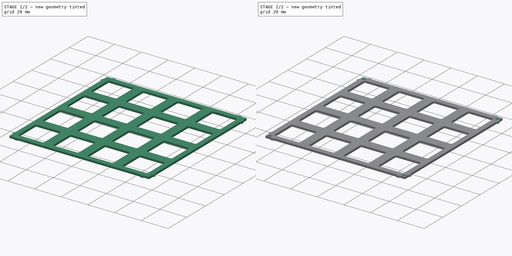
[diagram: build sequence overview — one tinted view per stage of 2, left to right]
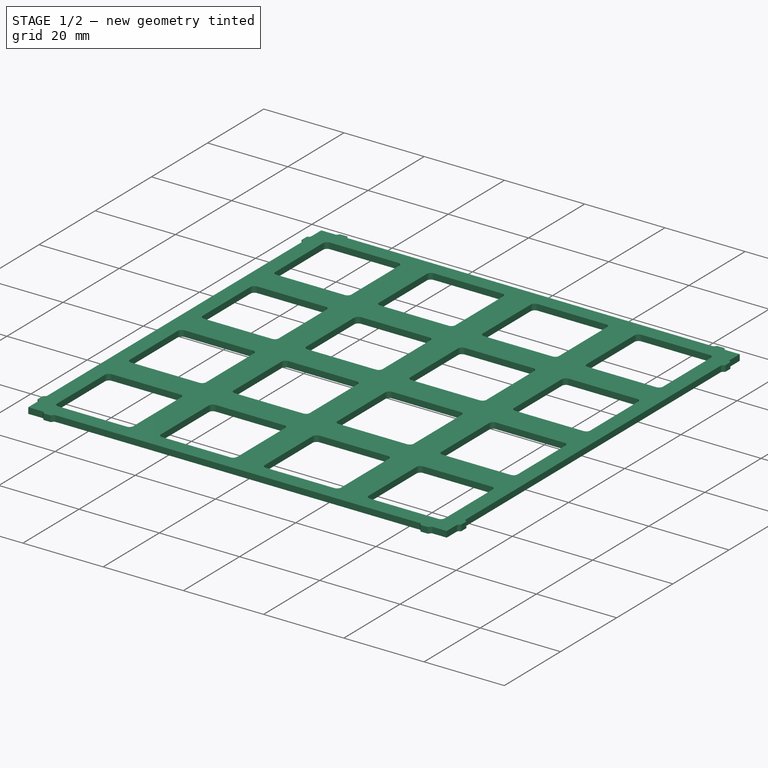
[diagram: stage 1 of 2 — iso view after this stage's code; geometry added in this stage tinted green]
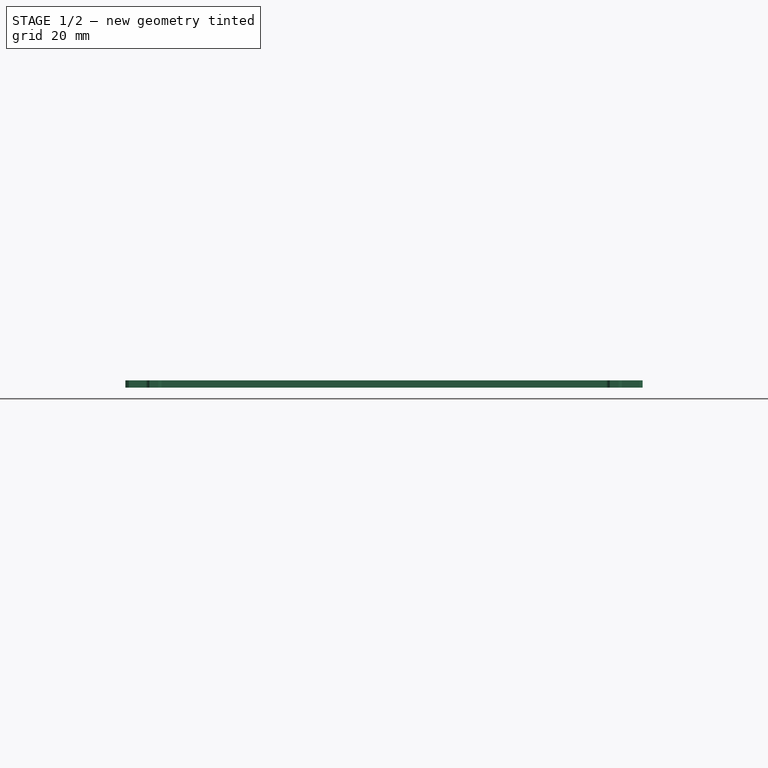
[diagram: stage 1 of 2 — front view after this stage's code; geometry added in this stage tinted green]
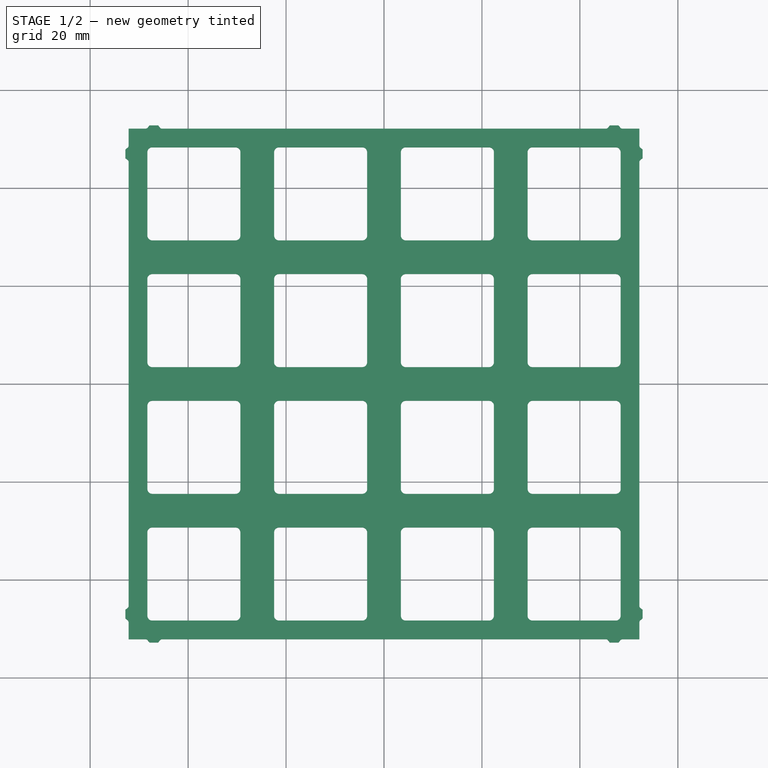
[diagram: stage 1 of 2 — top view after this stage's code; geometry added in this stage tinted green]
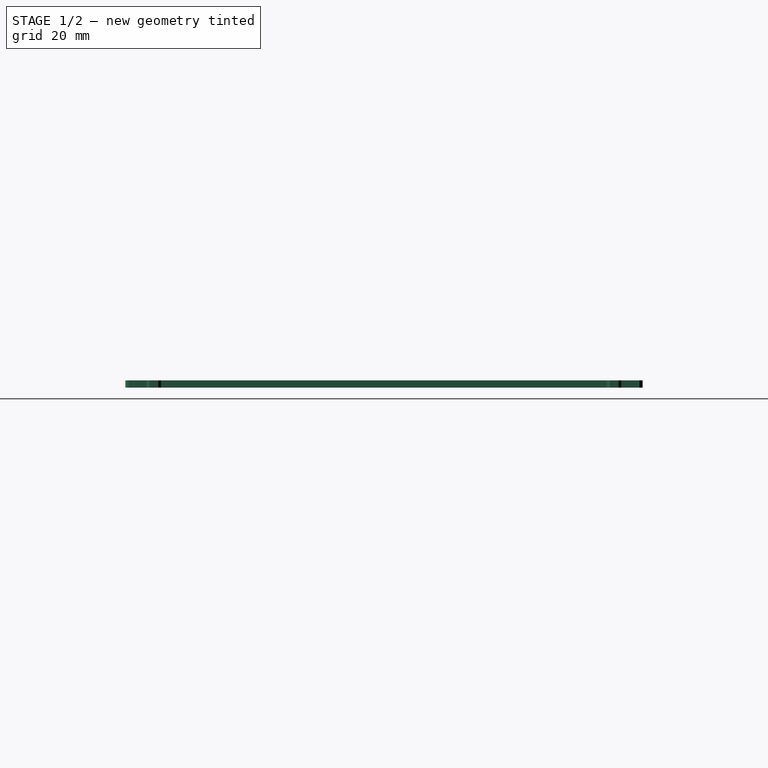
[diagram: stage 1 of 2 — right view after this stage's code; geometry added in this stage tinted green]
FCSTD DOCUMENT  (FreeCAD 1.0R39319 (Git))
Label: FRONTPANEL-BU16-1.5
License: All rights reserved
LicenseURL: https://en.wikipedia.org/wiki/All_rights_reserved
objects: Sketcher::SketchObject×3, Part::Feature×1, App::Part×1, PartDesign::SubShapeBinder×1, PartDesign::Pad×1, PartDesign::Pocket×1, PartDesign::Hole×1, PartDesign::Body×1
note: 18 computed .brp shape members not serialized (recipe doc carries the construction recipe); baked Part::Feature solids carry a one-line shape summary decoded from their .brp

FEATURE [Part::Feature] Part__Feature  label="kibot_hpbs7243_PCB"
  shape: bbox 105.6 x 105.6 x 0.91 mm, 206 faces (baked)
FEATURE [App::Part] FP_BU16_3D_1  label="FP-BU16-3D 1"
  Group = -> [Part__Feature]
  Origin = -> Origin001
FEATURE [PartDesign::SubShapeBinder] Binder
  BindCopyOnChange = 0
  BindMode = 0
  ClaimChildren = false
  Context = -> Body [Binder.]
  Fuse = false
  MakeFace = true
  OffsetFill = false
  OffsetIntersection = false
  OffsetJoinType = 0
  OffsetOpenResult = false
  PartialLoad = false
  Refine = true
  Relative = true
  Support = -> [FP_BU16_3D_1]
  _Version = 2
FEATURE [Sketcher::SketchObject] Sketch
  ArcFitTolerance = 1e-06
  AttachmentSupport = -> [XY_Plane]
  ExternalGeometry = -> [Binder]
  FullyConstrained = true
  MakeInternals = false
  MapMode = 5
  sketch-geometry (61):
    g0: LineSegment StartX=-52.15 StartY=-52.15 StartZ=0 EndX=-48.6441 EndY=-52.15 EndZ=0
    g1: LineSegment StartX=52.15 StartY=-52.15 StartZ=0 EndX=52.15 EndY=-48.6441 EndZ=0
    g2: LineSegment StartX=52.15 StartY=52.15 StartZ=0 EndX=48.6441 EndY=52.15 EndZ=0
    g3: LineSegment StartX=-52.15 StartY=52.15 StartZ=0 EndX=-52.15 EndY=48.6441 EndZ=0
    g4: GeomPoint [constr] X=0 Y=0 Z=0
    g5: LineSegment StartX=-48.2461 StartY=-52.3474 StartZ=0 EndX=-47.9019 EndY=-52.8 EndZ=0
    g6: LineSegment StartX=-46.0981 StartY=-52.8 StartZ=0 EndX=-45.7539 EndY=-52.3474 EndZ=0
    g7: LineSegment StartX=-47.9019 StartY=-52.8 StartZ=0 EndX=-46.0981 EndY=-52.8 EndZ=0
    g8: LineSegment StartX=-45.3559 StartY=-52.15 StartZ=0 EndX=45.3559 EndY=-52.15 EndZ=0
    g9: ArcOfCircle CenterX=-48.6441 CenterY=-52.65 CenterZ=0 NormalX=0 NormalY=0 NormalZ=1 AngleXU=0 Radius=0.500001 StartAngle=0.650143 EndAngle=1.5708
    g10: GeomPoint [constr] X=-48.3962 Y=-52.15 Z=0
    g11: ArcOfCircle CenterX=-45.3559 CenterY=-52.65 CenterZ=0 NormalX=0 NormalY=0 NormalZ=1 AngleXU=0 Radius=0.500001 StartAngle=1.5708 EndAngle=2.49145
    g12: LineSegment StartX=45.7539 StartY=-52.3474 StartZ=0 EndX=46.0981 EndY=-52.8 EndZ=0
    g13: LineSegment StartX=46.0981 StartY=-52.8 StartZ=0 EndX=47.9019 EndY=-52.8 EndZ=0
    g14: LineSegment StartX=47.9019 StartY=-52.8 StartZ=0 EndX=48.2461 EndY=-52.3474 EndZ=0
    g15: LineSegment StartX=48.6441 StartY=-52.15 StartZ=0 EndX=52.15 EndY=-52.15 EndZ=0
    g16: ArcOfCircle CenterX=45.3559 CenterY=-52.65 CenterZ=0 NormalX=0 NormalY=0 NormalZ=1 AngleXU=0 Radius=0.500001 StartAngle=0.650143 EndAngle=1.5708
    g17: GeomPoint [constr] X=45.6038 Y=-52.15 Z=0
    g18: ArcOfCircle CenterX=48.6441 CenterY=-52.65 CenterZ=0 NormalX=0 NormalY=0 NormalZ=1 AngleXU=0 Radius=0.500001 StartAngle=1.5708 EndAngle=2.49145
    g19: LineSegment StartX=52.3474 StartY=-48.2461 StartZ=0 EndX=52.8 EndY=-47.9019 EndZ=0
    g20: LineSegment StartX=52.8 StartY=-47.9019 StartZ=0 EndX=52.8 EndY=-46.0981 EndZ=0
    g21: LineSegment StartX=52.8 StartY=-46.0981 StartZ=0 EndX=52.3474 EndY=-45.7539 EndZ=0
    g22: LineSegment StartX=52.3474 StartY=45.7539 StartZ=0 EndX=52.8 EndY=46.0981 EndZ=0
    g23: LineSegment StartX=52.8 StartY=46.0981 StartZ=0 EndX=52.8 EndY=47.9019 EndZ=0
    g24: LineSegment StartX=52.8 StartY=47.9019 StartZ=0 EndX=52.3474 EndY=48.2461 EndZ=0
    g25: LineSegment StartX=48.2461 StartY=52.3474 StartZ=0 EndX=47.9019 EndY=52.8 EndZ=0
    g26: LineSegment StartX=47.9019 StartY=52.8 StartZ=0 EndX=46.0981 EndY=52.8 EndZ=0
    g27: LineSegment StartX=46.0981 StartY=52.8 StartZ=0 EndX=45.7539 EndY=52.3474 EndZ=0
    g28: LineSegment StartX=-45.7539 StartY=52.3474 StartZ=0 EndX=-46.0981 EndY=52.8 EndZ=0
    g29: LineSegment StartX=-46.0981 StartY=52.8 StartZ=0 EndX=-47.9019 EndY=52.8 EndZ=0
    g30: LineSegment StartX=-47.9019 StartY=52.8 StartZ=0 EndX=-48.2461 EndY=52.3474 EndZ=0
    g31: LineSegment StartX=-52.3474 StartY=48.2461 StartZ=0 EndX=-52.8 EndY=47.9019 EndZ=0
    g32: LineSegment StartX=-52.8 StartY=47.9019 StartZ=0 EndX=-52.8 EndY=46.0981 EndZ=0
    g33: LineSegment StartX=-52.8 StartY=46.0981 StartZ=0 EndX=-52.3474 EndY=45.7539 EndZ=0
    g34: LineSegment StartX=-52.3474 StartY=-48.2461 StartZ=0 EndX=-52.8 EndY=-47.9019 EndZ=0
    g35: LineSegment StartX=-52.8 StartY=-47.9019 StartZ=0 EndX=-52.8 EndY=-46.0981 EndZ=0
    g36: LineSegment StartX=-52.8 StartY=-46.0981 StartZ=0 EndX=-52.3474 EndY=-45.7539 EndZ=0
    g37: LineSegment StartX=-52.15 StartY=-48.6441 StartZ=0 EndX=-52.15 EndY=-52.15 EndZ=0
    g38: LineSegment StartX=-52.15 StartY=45.3559 StartZ=0 EndX=-52.15 EndY=-45.3559 EndZ=0
    g39: LineSegment StartX=-48.6441 StartY=52.15 StartZ=0 EndX=-52.15 EndY=52.15 EndZ=0
    g40: LineSegment StartX=45.3559 StartY=52.15 StartZ=0 EndX=-45.3559 EndY=52.15 EndZ=0
    g41: LineSegment StartX=52.15 StartY=48.6441 StartZ=0 EndX=52.15 EndY=52.15 EndZ=0
    g42: LineSegment StartX=52.15 StartY=-45.3559 StartZ=0 EndX=52.15 EndY=45.3559 EndZ=0
    g43: ArcOfCircle CenterX=52.65 CenterY=-48.6441 CenterZ=0 NormalX=0 NormalY=0 NormalZ=1 AngleXU=0 Radius=0.500001 StartAngle=2.22094 EndAngle=3.14159
    g44: GeomPoint [constr] X=52.15 Y=-48.3962 Z=0
    g45: ArcOfCircle CenterX=52.65 CenterY=-45.3559 CenterZ=0 NormalX=0 NormalY=0 NormalZ=1 AngleXU=0 Radius=0.500001 StartAngle=3.14159 EndAngle=4.06225
    g46: ArcOfCircle CenterX=52.65 CenterY=45.3559 CenterZ=0 NormalX=0 NormalY=0 NormalZ=1 AngleXU=0 Radius=0.500001 StartAngle=2.22094 EndAngle=3.14159
    g47: GeomPoint [constr] X=52.15 Y=45.6038 Z=0
    g48: ArcOfCircle CenterX=52.65 CenterY=48.6441 CenterZ=0 NormalX=0 NormalY=0 NormalZ=1 AngleXU=0 Radius=0.500001 StartAngle=3.14159 EndAngle=4.06225
    g49: ArcOfCircle CenterX=48.6441 CenterY=52.65 CenterZ=0 NormalX=0 NormalY=0 NormalZ=1 AngleXU=0 Radius=0.500001 StartAngle=3.79174 EndAngle=4.71239
    g50: GeomPoint [constr] X=48.3962 Y=52.15 Z=0
    g51: ArcOfCircle CenterX=45.3559 CenterY=52.65 CenterZ=0 NormalX=0 NormalY=0 NormalZ=1 AngleXU=0 Radius=0.500001 StartAngle=4.71239 EndAngle=5.63304
    g52: ArcOfCircle CenterX=-45.3559 CenterY=52.65 CenterZ=0 NormalX=0 NormalY=0 NormalZ=1 AngleXU=0 Radius=0.500001 StartAngle=3.79174 EndAngle=4.71239
    g53: GeomPoint [constr] X=-45.6038 Y=52.15 Z=0
    g54: ArcOfCircle CenterX=-48.6441 CenterY=52.65 CenterZ=0 NormalX=0 NormalY=0 NormalZ=1 AngleXU=0 Radius=0.500001 StartAngle=4.71239 EndAngle=5.63304
    g55: ArcOfCircle CenterX=-52.65 CenterY=48.6441 CenterZ=0 NormalX=0 NormalY=0 NormalZ=1 AngleXU=0 Radius=0.500001 StartAngle=5.36253 EndAngle=6.28319
    g56: GeomPoint [constr] X=-52.15 Y=48.3962 Z=0
    g57: ArcOfCircle CenterX=-52.65 CenterY=45.3559 CenterZ=0 NormalX=0 NormalY=0 NormalZ=1 AngleXU=0 Radius=0.500001 StartAngle=-5.3e-15 EndAngle=0.920653
    g58: ArcOfCircle CenterX=-52.65 CenterY=-45.3559 CenterZ=0 NormalX=0 NormalY=0 NormalZ=1 AngleXU=0 Radius=0.500001 StartAngle=5.36253 EndAngle=6.28319
    g59: GeomPoint [constr] X=-52.15 Y=-45.6038 Z=0
    g60: ArcOfCircle CenterX=-52.65 CenterY=-48.6441 CenterZ=0 NormalX=0 NormalY=0 NormalZ=1 AngleXU=0 Radius=0.500001 StartAngle=-4.4e-15 EndAngle=0.920653
  constraints (157):
    c: Coincident(g15,g1)
    c: Coincident(g41,g2)
    c: Coincident(g39,g3)
    c: Coincident(g37,g0)
    c: Horizontal(g0)
    c: Horizontal(g2)
    c: Vertical(g1)
    c: Vertical(g3)
    c: Symmetric(g2,g0,g4)
    c: Coincident(g4,g-1)
    c: Distance(g-3,g-4) = 104.35
    c: Distance(g1,g3) = 104.3
    c: PointOnObject(g5,g-5)
    c: Parallel(g-7,g5)
    c: PointOnObject(g6,g-5)
    c: Parallel(g-8,g6)
    c: Coincident(g7,g5)
    c: Coincident(g7,g6)
    c: Distance(g-7,g5) = 0.1
    c: Distance(g6,g-8) = 0.1
    c: PointOnObject(g10,g5)
    c: PointOnObject(g10,g0)
    c: Tangent(g5,g9) = 1.5708
    c: Tangent(g0,g9) = 1.5708
    c: Tangent(g6,g11) = 1.5708
    c: Tangent(g8,g11) = 1.5708
    c: Equal(g-9,g9)
    c: Equal(g-10,g11)
    c: Horizontal(g8)
    c: Equal(g5,g6)
    c: Coincident(g13,g12)
    c: Horizontal(g13)
    c: Coincident(g14,g13)
    c: PointOnObject(g17,g12)
    c: PointOnObject(g17,g8)
    c: Tangent(g12,g16) = 1.5708
    c: Tangent(g8,g16) = 1.5708
    c: Tangent(g14,g18) = 1.5708
    c: Tangent(g15,g18) = 1.5708
    c: Equal(g16,g18)
    c: Equal(g16,g9)
    c: Equal(g14,g12)
    c: Equal(g5,g12)
    c: Horizontal(g15)
    c: Equal(g13,g7)
    c: Equal(g15,g0)
    c: Coincident(g20,g19)
    c: Vertical(g20)
    c: Coincident(g21,g20)
    c: Coincident(g23,g22)
    c: Coincident(g24,g23)
    c: Coincident(g26,g25)
    c: Horizontal(g26)
    c: Coincident(g27,g26)
    c: Coincident(g29,g28)
    c: Horizontal(g29)
    c: Coincident(g32,g31)
    c: Coincident(g33,g32)
    c: Coincident(g35,g34)
    c: Coincident(g36,g35)
    c: Vertical(g35)
    c: Vertical(g23)
    c: Coincident(g30,g29)
    c: Vertical(g32)
    c: PointOnObject(g44,g19)
    c: PointOnObject(g44,g1)
    c: Tangent(g19,g43) = 1.5708
    c: Tangent(g1,g43) = 1.5708
    c: Tangent(g21,g45) = 1.5708
    c: Tangent(g42,g45) = 1.5708
    c: PointOnObject(g47,g22)
    c: PointOnObject(g47,g42)
    c: Tangent(g22,g46) = 1.5708
    c: Tangent(g42,g46) = 1.5708
    c: Tangent(g24,g48) = 1.5708
    c: Tangent(g41,g48) = 1.5708
    c: PointOnObject(g50,g25)
    c: PointOnObject(g50,g2)
    c: Tangent(g25,g49) = 1.5708
    c: Tangent(g2,g49) = 1.5708
    c: Tangent(g27,g51) = 1.5708
    c: Tangent(g40,g51) = 1.5708
    c: PointOnObject(g53,g28)
    c: PointOnObject(g53,g40)
    c: Tangent(g28,g52) = 1.5708
    c: Tangent(g40,g52) = 1.5708
    c: Tangent(g30,g54) = 1.5708
    c: Tangent(g39,g54) = 1.5708
    c: PointOnObject(g56,g31)
    c: PointOnObject(g56,g3)
    c: Tangent(g31,g55) = 1.5708
    c: Tangent(g3,g55) = 1.5708
    c: Tangent(g38,g57) = 1.5708
    c: Tangent(g33,g57) = 1.5708
    c: PointOnObject(g59,g36)
    c: PointOnObject(g59,g38)
    c: Tangent(g36,g58) = -1.5708
    c: Tangent(g38,g58) = 1.5708
    c: Tangent(g37,g60) = 1.5708
    c: Tangent(g34,g60) = -1.5708
    c: Equal(g58,g60)
    c: Equal(g55,g57)
    c: Equal(g54,g52)
    c: Equal(g49,g51)
    c: Equal(g48,g46)
    c: Equal(g43,g45)
    c: Vertical(g42)
    c: Horizontal(g40)
    c: Vertical(g38)
    c: Vertical(g37)
    c: Horizontal(g39)
    c: Vertical(g41)
    c: Equal(g1,g15)
    c: Equal(g0,g37)
    c: Equal(g39,g3)
    c: Equal(g2,g41)
    c: Vertical(g38,g37)
    c: Vertical(g1,g42)
    c: Vertical(g3,g38)
    c: Horizontal(g39,g40)
    c: Equal(g30,g28)
    c: Equal(g36,g34)
    c: Equal(g21,g19)
    c: Equal(g22,g24)
    c: Equal(g25,g27)
    c: Equal(g7,g35)
    c: Equal(g32,g29)
    c: Equal(g32,g7)
    c: Equal(g29,g26)
    c: Equal(g26,g23)
    c: Equal(g23,g20)
    c: Equal(g5,g34)
    c: Equal(g33,g34)
    c: Equal(g33,g30)
    c: Equal(g30,g27)
    c: Equal(g25,g24)
    c: Equal(g24,g21)
    c: Equal(g9,g60)
    c: Equal(g60,g57)
    c: Equal(g57,g54)
    c: Equal(g54,g51)
    c: Equal(g51,g48)
    c: Equal(g48,g45)
    c: Parallel(g6,g14)
    c: Parallel(g12,g5)
    c: Parallel(g34,g33)
    c: Parallel(g36,g31)
    c: Parallel(g24,g21)
    c: Parallel(g19,g22)
    c: Equal(g8,g38)
    c: Distance(g40,g8) = 104.3
    c: PointOnObject(g20,g-13)
    c: Equal(g41,g1)
    c: PointOnObject(g35,g-14)
    c: Equal(g37,g3)
    c: Horizontal(g28,g26)
    c: PointOnObject(g29,g-15)
FEATURE [PartDesign::Pad] Pad
  Direction = (0,0,1)
  Length = 1.5
  Length2 = 10
  Profile = -> Sketch
  ReferenceAxis = -> Sketch [N_Axis]
  Refine = true
  Reversed = true
  Suppressed = false
  Type = 0
FEATURE [Sketcher::SketchObject] Sketch001
  ArcFitTolerance = 1e-06
  AttachmentSupport = -> [XY_Plane]
  FullyConstrained = true
  MakeInternals = false
  MapMode = 5
  sketch-geometry (234):
    g0: LineSegment StartX=-47.32 StartY=29.32 StartZ=0 EndX=-30.32 EndY=29.32 EndZ=0
    g1: LineSegment StartX=-29.32 StartY=30.32 StartZ=0 EndX=-29.32 EndY=47.32 EndZ=0
    g2: LineSegment StartX=-30.32 StartY=48.32 StartZ=0 EndX=-47.32 EndY=48.32 EndZ=0
    g3: LineSegment StartX=-48.32 StartY=47.32 StartZ=0 EndX=-48.32 EndY=30.32 EndZ=0
    g4: GeomPoint [constr] X=-38.82 Y=38.82 Z=0
    g5: ArcOfCircle CenterX=-47.32 CenterY=47.32 CenterZ=0 NormalX=0 NormalY=0 NormalZ=1 AngleXU=0 Radius=1 StartAngle=1.5708 EndAngle=3.14159
    g6: GeomPoint [constr] X=-48.32 Y=48.32 Z=0
    g7: ArcOfCircle CenterX=-30.32 CenterY=47.32 CenterZ=0 NormalX=0 NormalY=0 NormalZ=1 AngleXU=0 Radius=1 StartAngle=-2.7e-15 EndAngle=1.5708
    g8: GeomPoint [constr] X=-29.32 Y=48.32 Z=0
    g9: ArcOfCircle CenterX=-30.32 CenterY=30.32 CenterZ=0 NormalX=0 NormalY=0 NormalZ=1 AngleXU=0 Radius=1 StartAngle=4.71239 EndAngle=6.28319
    g10: GeomPoint [constr] X=-29.32 Y=29.32 Z=0
    g11: ArcOfCircle CenterX=-47.32 CenterY=30.32 CenterZ=0 NormalX=0 NormalY=0 NormalZ=1 AngleXU=0 Radius=1 StartAngle=3.14159 EndAngle=4.71239
    g12: GeomPoint [constr] X=-48.32 Y=29.32 Z=0
    g13: LineSegment StartX=-21.44 StartY=29.32 StartZ=0 EndX=-4.44 EndY=29.32 EndZ=0
    g14: LineSegment StartX=-3.44 StartY=30.32 StartZ=0 EndX=-3.44 EndY=47.32 EndZ=0
    g15: LineSegment StartX=-4.44 StartY=48.32 StartZ=0 EndX=-21.44 EndY=48.32 EndZ=0
    g16: LineSegment StartX=-22.44 StartY=47.32 StartZ=0 EndX=-22.44 EndY=30.32 EndZ=0
    g17: GeomPoint [constr] X=-12.94 Y=38.82 Z=0
    g18: LineSegment StartX=4.44 StartY=29.32 StartZ=0 EndX=21.44 EndY=29.32 EndZ=0
    g19: LineSegment StartX=22.44 StartY=30.32 StartZ=0 EndX=22.44 EndY=47.32 EndZ=0
    g20: LineSegment StartX=21.44 StartY=48.32 StartZ=0 EndX=4.44 EndY=48.32 EndZ=0
    g21: LineSegment StartX=3.44 StartY=47.32 StartZ=0 EndX=3.44 EndY=30.32 EndZ=0
    g22: GeomPoint [constr] X=12.94 Y=38.82 Z=0
    g23: LineSegment StartX=30.32 StartY=29.32 StartZ=0 EndX=47.32 EndY=29.32 EndZ=0
    g24: LineSegment StartX=48.32 StartY=30.32 StartZ=0 EndX=48.32 EndY=47.32 EndZ=0
    g25: LineSegment StartX=47.32 StartY=48.32 StartZ=0 EndX=30.32 EndY=48.32 EndZ=0
    g26: LineSegment StartX=29.32 StartY=47.32 StartZ=0 EndX=29.32 EndY=30.32 EndZ=0
    g27: GeomPoint [constr] X=38.82 Y=38.82 Z=0
    g28: LineSegment StartX=-47.32 StartY=3.44 StartZ=0 EndX=-30.32 EndY=3.44 EndZ=0
    g29: LineSegment StartX=-29.32 StartY=4.44 StartZ=0 EndX=-29.32 EndY=21.44 EndZ=0
    g30: LineSegment StartX=-30.32 StartY=22.44 StartZ=0 EndX=-47.32 EndY=22.44 EndZ=0
    g31: LineSegment StartX=-48.32 StartY=21.44 StartZ=0 EndX=-48.32 EndY=4.44 EndZ=0
    g32: GeomPoint [constr] X=-38.82 Y=12.94 Z=0
    g33: LineSegment StartX=-21.44 StartY=3.44 StartZ=0 EndX=-4.44 EndY=3.44 EndZ=0
    g34: LineSegment StartX=-3.44 StartY=4.44 StartZ=0 EndX=-3.44 EndY=21.44 EndZ=0
    g35: LineSegment StartX=-4.44 StartY=22.44 StartZ=0 EndX=-21.44 EndY=22.44 EndZ=0
    g36: LineSegment StartX=-22.44 StartY=21.44 StartZ=0 EndX=-22.44 EndY=4.44 EndZ=0
    g37: GeomPoint [constr] X=-12.94 Y=12.94 Z=0
    g38: LineSegment StartX=4.44 StartY=3.44 StartZ=0 EndX=21.44 EndY=3.44 EndZ=0
    g39: LineSegment StartX=22.44 StartY=4.44 StartZ=0 EndX=22.44 EndY=21.44 EndZ=0
    g40: LineSegment StartX=21.44 StartY=22.44 StartZ=0 EndX=4.44 EndY=22.44 EndZ=0
    g41: LineSegment StartX=3.44 StartY=21.44 StartZ=0 EndX=3.44 EndY=4.44 EndZ=0
    g42: GeomPoint [constr] X=12.94 Y=12.94 Z=0
    g43: LineSegment StartX=30.32 StartY=3.44 StartZ=0 EndX=47.32 EndY=3.44 EndZ=0
    g44: LineSegment StartX=48.32 StartY=4.44 StartZ=0 EndX=48.32 EndY=21.44 EndZ=0
    g45: LineSegment StartX=47.32 StartY=22.44 StartZ=0 EndX=30.32 EndY=22.44 EndZ=0
    g46: LineSegment StartX=29.32 StartY=21.44 StartZ=0 EndX=29.32 EndY=4.44 EndZ=0
    g47: GeomPoint [constr] X=38.82 Y=12.94 Z=0
    g48: ArcOfCircle CenterX=-21.44 CenterY=47.32 CenterZ=0 NormalX=0 NormalY=0 NormalZ=1 AngleXU=0 Radius=1 StartAngle=1.5708 EndAngle=3.14159
    g49: GeomPoint [constr] X=-22.44 Y=48.32 Z=0
    g50: ArcOfCircle CenterX=-4.44 CenterY=47.32 CenterZ=0 NormalX=0 NormalY=0 NormalZ=1 AngleXU=0 Radius=1 StartAngle=-1.8e-15 EndAngle=1.5708
    g51: GeomPoint [constr] X=-3.44 Y=48.32 Z=0
    g52: ArcOfCircle CenterX=-4.44 CenterY=30.32 CenterZ=0 NormalX=0 NormalY=0 NormalZ=1 AngleXU=0 Radius=1 StartAngle=4.71239 EndAngle=6.28319
    g53: GeomPoint [constr] X=-3.44 Y=29.32 Z=0
    g54: ArcOfCircle CenterX=-21.44 CenterY=30.32 CenterZ=0 NormalX=0 NormalY=0 NormalZ=1 AngleXU=0 Radius=1 StartAngle=3.14159 EndAngle=4.71239
    g55: GeomPoint [constr] X=-22.44 Y=29.32 Z=0
    g56: ArcOfCircle CenterX=4.44 CenterY=47.32 CenterZ=0 NormalX=0 NormalY=0 NormalZ=1 AngleXU=0 Radius=1 StartAngle=1.5708 EndAngle=3.14159
    g57: GeomPoint [constr] X=3.44 Y=48.32 Z=0
    g58: ArcOfCircle CenterX=21.44 CenterY=47.32 CenterZ=0 NormalX=0 NormalY=0 NormalZ=1 AngleXU=0 Radius=1 StartAngle=1.4e-15 EndAngle=1.5708
    g59: GeomPoint [constr] X=22.44 Y=48.32 Z=0
    g60: ArcOfCircle CenterX=30.32 CenterY=47.32 CenterZ=0 NormalX=0 NormalY=0 NormalZ=1 AngleXU=0 Radius=1 StartAngle=1.5708 EndAngle=3.14159
    g61: GeomPoint [constr] X=29.32 Y=48.32 Z=0
    g62: ArcOfCircle CenterX=47.32 CenterY=47.32 CenterZ=0 NormalX=0 NormalY=0 NormalZ=1 AngleXU=0 Radius=1 StartAngle=-1.8e-15 EndAngle=1.5708
    g63: GeomPoint [constr] X=48.32 Y=48.32 Z=0
    g64: ArcOfCircle CenterX=47.32 CenterY=30.32 CenterZ=0 NormalX=0 NormalY=0 NormalZ=1 AngleXU=0 Radius=1 StartAngle=4.71239 EndAngle=6.28319
    g65: GeomPoint [constr] X=48.32 Y=29.32 Z=0
    g66: ArcOfCircle CenterX=30.32 CenterY=30.32 CenterZ=0 NormalX=0 NormalY=0 NormalZ=1 AngleXU=0 Radius=1 StartAngle=3.14159 EndAngle=4.71239
    g67: GeomPoint [constr] X=29.32 Y=29.32 Z=0
    g68: ArcOfCircle CenterX=21.44 CenterY=30.32 CenterZ=0 NormalX=0 NormalY=0 NormalZ=1 AngleXU=0 Radius=1 StartAngle=4.71239 EndAngle=6.28319
    g69: GeomPoint [constr] X=22.44 Y=29.32 Z=0
    g70: ArcOfCircle CenterX=4.44 CenterY=30.32 CenterZ=0 NormalX=0 NormalY=0 NormalZ=1 AngleXU=0 Radius=1 StartAngle=3.14159 EndAngle=4.71239
    g71: GeomPoint [constr] X=3.44 Y=29.32 Z=0
    g72: ArcOfCircle CenterX=30.32 CenterY=21.44 CenterZ=0 NormalX=0 NormalY=0 NormalZ=1 AngleXU=0 Radius=1 StartAngle=1.5708 EndAngle=3.14159
    g73: GeomPoint [constr] X=29.32 Y=22.44 Z=0
    g74: ArcOfCircle CenterX=47.32 CenterY=21.44 CenterZ=0 NormalX=0 NormalY=0 NormalZ=1 AngleXU=0 Radius=1 StartAngle=4e-16 EndAngle=1.5708
    g75: GeomPoint [constr] X=48.32 Y=22.44 Z=0
    g76: ArcOfCircle CenterX=47.32 CenterY=4.44 CenterZ=0 NormalX=0 NormalY=0 NormalZ=1 AngleXU=0 Radius=1 StartAngle=4.71239 EndAngle=6.28319
    g77: GeomPoint [constr] X=48.32 Y=3.44 Z=0
    g78: ArcOfCircle CenterX=30.32 CenterY=4.44 CenterZ=0 NormalX=0 NormalY=0 NormalZ=1 AngleXU=0 Radius=1 StartAngle=3.14159 EndAngle=4.71239
    g79: GeomPoint [constr] X=29.32 Y=3.44 Z=0
    g80: ArcOfCircle CenterX=21.44 CenterY=4.44 CenterZ=0 NormalX=0 NormalY=0 NormalZ=1 AngleXU=0 Radius=1 StartAngle=4.71239 EndAngle=6.28319
    g81: GeomPoint [constr] X=22.44 Y=3.44 Z=0
    g82: ArcOfCircle CenterX=21.44 CenterY=21.44 CenterZ=0 NormalX=0 NormalY=0 NormalZ=1 AngleXU=0 Radius=1 StartAngle=1.7e-15 EndAngle=1.5708
    g83: GeomPoint [constr] X=22.44 Y=22.44 Z=0
    g84: ArcOfCircle CenterX=4.44 CenterY=21.44 CenterZ=0 NormalX=0 NormalY=0 NormalZ=1 AngleXU=0 Radius=1 StartAngle=1.5708 EndAngle=3.14159
    g85: GeomPoint [constr] X=3.44 Y=22.44 Z=0
    g86: ArcOfCircle CenterX=4.44 CenterY=4.44 CenterZ=0 NormalX=0 NormalY=0 NormalZ=1 AngleXU=0 Radius=1 StartAngle=3.14159 EndAngle=4.71239
    g87: GeomPoint [constr] X=3.44 Y=3.44 Z=0
    g88: ArcOfCircle CenterX=-21.44 CenterY=21.44 CenterZ=0 NormalX=0 NormalY=0 NormalZ=1 AngleXU=0 Radius=1 StartAngle=1.5708 EndAngle=3.14159
    g89: GeomPoint [constr] X=-22.44 Y=22.44 Z=0
    g90: ArcOfCircle CenterX=-4.44 CenterY=21.44 CenterZ=0 NormalX=0 NormalY=0 NormalZ=1 AngleXU=0 Radius=1 StartAngle=-9e-16 EndAngle=1.5708
    g91: GeomPoint [constr] X=-3.44 Y=22.44 Z=0
    g92: ArcOfCircle CenterX=-4.44 CenterY=4.44 CenterZ=0 NormalX=0 NormalY=0 NormalZ=1 AngleXU=0 Radius=1 StartAngle=4.71239 EndAngle=6.28319
    g93: GeomPoint [constr] X=-3.44 Y=3.44 Z=0
    g94: ArcOfCircle CenterX=-21.44 CenterY=4.44 CenterZ=0 NormalX=0 NormalY=0 NormalZ=1 AngleXU=0 Radius=1 StartAngle=3.14159 EndAngle=4.71239
    g95: GeomPoint [constr] X=-22.44 Y=3.44 Z=0
    g96: ArcOfCircle CenterX=-30.32 CenterY=21.44 CenterZ=0 NormalX=0 NormalY=0 NormalZ=1 AngleXU=0 Radius=1 StartAngle=1e-16 EndAngle=1.5708
    g97: GeomPoint [constr] X=-29.32 Y=22.44 Z=0
    g98: ArcOfCircle CenterX=-30.32 CenterY=4.44 CenterZ=0 NormalX=0 NormalY=0 NormalZ=1 AngleXU=0 Radius=1 StartAngle=4.71239 EndAngle=6.28319
    g99: GeomPoint [constr] X=-29.32 Y=3.44 Z=0
    g100: ArcOfCircle CenterX=-47.32 CenterY=4.44 CenterZ=0 NormalX=0 NormalY=0 NormalZ=1 AngleXU=0 Radius=1 StartAngle=3.14159 EndAngle=4.71239
    g101: GeomPoint [constr] X=-48.32 Y=3.44 Z=0
    g102: ArcOfCircle CenterX=-47.32 CenterY=21.44 CenterZ=0 NormalX=0 NormalY=0 NormalZ=1 AngleXU=0 Radius=1 StartAngle=1.5708 EndAngle=3.14159
    g103: GeomPoint [constr] X=-48.32 Y=22.44 Z=0
    g104: LineSegment [constr] StartX=-38.82 StartY=38.82 StartZ=0 EndX=-12.94 EndY=38.82 EndZ=0
    g105: LineSegment [constr] StartX=-12.94 StartY=38.82 StartZ=0 EndX=12.94 EndY=38.82 EndZ=0
    g106: LineSegment [constr] StartX=12.94 StartY=38.82 StartZ=0 EndX=38.82 EndY=38.82 EndZ=0
    g107: LineSegment [constr] StartX=38.82 StartY=38.82 StartZ=0 EndX=38.82 EndY=12.94 EndZ=0
    g108: LineSegment [constr] StartX=38.82 StartY=12.94 StartZ=0 EndX=12.94 EndY=12.94 EndZ=0
    g109: LineSegment [constr] StartX=12.94 StartY=12.94 StartZ=0 EndX=-12.94 EndY=12.94 EndZ=0
    g110: LineSegment [constr] StartX=-12.94 StartY=12.94 StartZ=0 EndX=-38.82 EndY=12.94 EndZ=0
    g111: LineSegment [constr] StartX=-38.82 StartY=12.94 StartZ=0 EndX=-38.82 EndY=38.82 EndZ=0
    g112: LineSegment [constr] StartX=-12.94 StartY=38.82 StartZ=0 EndX=-12.94 EndY=12.94 EndZ=0
    g113: LineSegment [constr] StartX=12.94 StartY=12.94 StartZ=0 EndX=12.94 EndY=38.82 EndZ=0
    g114: LineSegment StartX=-48.32 StartY=-4.44 StartZ=0 EndX=-48.32 EndY=-21.44 EndZ=0
    g115: LineSegment StartX=-47.32 StartY=-22.44 StartZ=0 EndX=-30.32 EndY=-22.44 EndZ=0
    g116: LineSegment StartX=-29.32 StartY=-21.44 StartZ=0 EndX=-29.32 EndY=-4.44 EndZ=0
    g117: LineSegment StartX=-30.32 StartY=-3.44 StartZ=0 EndX=-47.32 EndY=-3.44 EndZ=0
    g118: GeomPoint [constr] X=-38.82 Y=-12.94 Z=0
    g119: LineSegment StartX=-22.44 StartY=-4.44 StartZ=0 EndX=-22.44 EndY=-21.44 EndZ=0
    g120: LineSegment StartX=-21.44 StartY=-22.44 StartZ=0 EndX=-4.44 EndY=-22.44 EndZ=0
    g121: LineSegment StartX=-3.44 StartY=-21.44 StartZ=0 EndX=-3.44 EndY=-4.44 EndZ=0
    g122: LineSegment StartX=-4.44 StartY=-3.44 StartZ=0 EndX=-21.44 EndY=-3.44 EndZ=0
    g123: GeomPoint [constr] X=-12.94 Y=-12.94 Z=0
    g124: LineSegment StartX=3.44 StartY=-4.44 StartZ=0 EndX=3.44 EndY=-21.44 EndZ=0
    g125: LineSegment StartX=4.44 StartY=-22.44 StartZ=0 EndX=21.44 EndY=-22.44 EndZ=0
    g126: LineSegment StartX=22.44 StartY=-21.44 StartZ=0 EndX=22.44 EndY=-4.44 EndZ=0
    g127: LineSegment StartX=21.44 StartY=-3.44 StartZ=0 EndX=4.44 EndY=-3.44 EndZ=0
    g128: GeomPoint [constr] X=12.94 Y=-12.94 Z=0
    g129: LineSegment StartX=29.32 StartY=-4.44 StartZ=0 EndX=29.32 EndY=-21.44 EndZ=0
    g130: LineSegment StartX=30.32 StartY=-22.44 StartZ=0 EndX=47.32 EndY=-22.44 EndZ=0
    g131: LineSegment StartX=48.32 StartY=-21.44 StartZ=0 EndX=48.32 EndY=-4.44 EndZ=0
    g132: LineSegment StartX=47.32 StartY=-3.44 StartZ=0 EndX=30.32 EndY=-3.44 EndZ=0
    g133: GeomPoint [constr] X=38.82 Y=-12.94 Z=0
    g134: LineSegment StartX=-48.32 StartY=-30.32 StartZ=0 EndX=-48.32 EndY=-47.32 EndZ=0
    g135: LineSegment StartX=-47.32 StartY=-48.32 StartZ=0 EndX=-30.32 EndY=-48.32 EndZ=0
    g136: LineSegment StartX=-29.32 StartY=-47.32 StartZ=0 EndX=-29.32 EndY=-30.32 EndZ=0
    g137: LineSegment StartX=-30.32 StartY=-29.32 StartZ=0 EndX=-47.32 EndY=-29.32 EndZ=0
    g138: GeomPoint [constr] X=-38.82 Y=-38.82 Z=0
    g139: LineSegment StartX=-22.44 StartY=-30.32 StartZ=0 EndX=-22.44 EndY=-47.32 EndZ=0
    g140: LineSegment StartX=-21.44 StartY=-48.32 StartZ=0 EndX=-4.44 EndY=-48.32 EndZ=0
    g141: LineSegment StartX=-3.44 StartY=-47.32 StartZ=0 EndX=-3.44 EndY=-30.32 EndZ=0
    g142: LineSegment StartX=-4.44 StartY=-29.32 StartZ=0 EndX=-21.44 EndY=-29.32 EndZ=0
    g143: GeomPoint [constr] X=-12.94 Y=-38.82 Z=0
    g144: LineSegment StartX=3.44 StartY=-30.32 StartZ=0 EndX=3.44 EndY=-47.32 EndZ=0
    g145: LineSegment StartX=4.44 StartY=-48.32 StartZ=0 EndX=21.44 EndY=-48.32 EndZ=0
    g146: LineSegment StartX=22.44 StartY=-47.32 StartZ=0 EndX=22.44 EndY=-30.32 EndZ=0
    g147: LineSegment StartX=21.44 StartY=-29.32 StartZ=0 EndX=4.44 EndY=-29.32 EndZ=0
    g148: GeomPoint [constr] X=12.94 Y=-38.82 Z=0
    g149: LineSegment StartX=29.32 StartY=-30.32 StartZ=0 EndX=29.32 EndY=-47.32 EndZ=0
    g150: LineSegment StartX=30.32 StartY=-48.32 StartZ=0 EndX=47.32 EndY=-48.32 EndZ=0
    g151: LineSegment StartX=48.32 StartY=-47.32 StartZ=0 EndX=48.32 EndY=-30.32 EndZ=0
    g152: LineSegment StartX=47.32 StartY=-29.32 StartZ=0 EndX=30.32 EndY=-29.32 EndZ=0
    g153: GeomPoint [constr] X=38.82 Y=-38.82 Z=0
    g154: ArcOfCircle CenterX=-47.32 CenterY=-4.44 CenterZ=0 NormalX=0 NormalY=0 NormalZ=1 AngleXU=0 Radius=1 StartAngle=1.5708 EndAngle=3.14159
    g155: GeomPoint [constr] X=-48.32 Y=-3.44 Z=0
    g156: ArcOfCircle CenterX=-47.32 CenterY=-21.44 CenterZ=0 NormalX=0 NormalY=0 NormalZ=1 AngleXU=0 Radius=1 StartAngle=3.14159 EndAngle=4.71239
    g157: GeomPoint [constr] X=-48.32 Y=-22.44 Z=0
    g158: ArcOfCircle CenterX=-30.32 CenterY=-4.44 CenterZ=0 NormalX=0 NormalY=0 NormalZ=1 AngleXU=0 Radius=1 StartAngle=3e-16 EndAngle=1.5708
    g159: GeomPoint [constr] X=-29.32 Y=-3.44 Z=0
    g160: ArcOfCircle CenterX=-30.32 CenterY=-21.44 CenterZ=0 NormalX=0 NormalY=0 NormalZ=1 AngleXU=0 Radius=1 StartAngle=4.71239 EndAngle=6.28319
    g161: GeomPoint [constr] X=-29.32 Y=-22.44 Z=0
    g162: ArcOfCircle CenterX=-21.44 CenterY=-4.44 CenterZ=0 NormalX=0 NormalY=0 NormalZ=1 AngleXU=0 Radius=1 StartAngle=1.5708 EndAngle=3.14159
    g163: GeomPoint [constr] X=-22.44 Y=-3.44 Z=0
    g164: ArcOfCircle CenterX=-4.44 CenterY=-4.44 CenterZ=0 NormalX=0 NormalY=0 NormalZ=1 AngleXU=0 Radius=1 StartAngle=0 EndAngle=1.5708
    g165: GeomPoint [constr] X=-3.44 Y=-3.44 Z=0
    g166: ArcOfCircle CenterX=-4.44 CenterY=-21.44 CenterZ=0 NormalX=0 NormalY=0 NormalZ=1 AngleXU=0 Radius=1 StartAngle=4.71239 EndAngle=6.28319
    g167: GeomPoint [constr] X=-3.44 Y=-22.44 Z=0
    g168: ArcOfCircle CenterX=-21.44 CenterY=-21.44 CenterZ=0 NormalX=0 NormalY=0 NormalZ=1 AngleXU=0 Radius=1 StartAngle=3.14159 EndAngle=4.71239
    g169: GeomPoint [constr] X=-22.44 Y=-22.44 Z=0
    g170: ArcOfCircle CenterX=4.44 CenterY=-4.44 CenterZ=0 NormalX=0 NormalY=0 NormalZ=1 AngleXU=0 Radius=1 StartAngle=1.5708 EndAngle=3.14159
    g171: GeomPoint [constr] X=3.44 Y=-3.44 Z=0
    g172: ArcOfCircle CenterX=21.44 CenterY=-4.44 CenterZ=0 NormalX=0 NormalY=0 NormalZ=1 AngleXU=0 Radius=1 StartAngle=3e-16 EndAngle=1.5708
    g173: GeomPoint [constr] X=22.44 Y=-3.44 Z=0
    g174: ArcOfCircle CenterX=21.44 CenterY=-21.44 CenterZ=0 NormalX=0 NormalY=0 NormalZ=1 AngleXU=0 Radius=1 StartAngle=4.71239 EndAngle=6.28319
    g175: GeomPoint [constr] X=22.44 Y=-22.44 Z=0
    g176: ArcOfCircle CenterX=4.44 CenterY=-21.44 CenterZ=0 NormalX=0 NormalY=0 NormalZ=1 AngleXU=0 Radius=1 StartAngle=3.14159 EndAngle=4.71239
    g177: GeomPoint [constr] X=3.44 Y=-22.44 Z=0
    g178: ArcOfCircle CenterX=47.32 CenterY=-4.44 CenterZ=0 NormalX=0 NormalY=0 NormalZ=1 AngleXU=0 Radius=1 StartAngle=2e-16 EndAngle=1.5708
    g179: GeomPoint [constr] X=48.32 Y=-3.44 Z=0
    g180: ArcOfCircle CenterX=30.32 CenterY=-4.44 CenterZ=0 NormalX=0 NormalY=0 NormalZ=1 AngleXU=0 Radius=1 StartAngle=1.5708 EndAngle=3.14159
    g181: GeomPoint [constr] X=29.32 Y=-3.44 Z=0
    g182: ArcOfCircle CenterX=30.32 CenterY=-21.44 CenterZ=0 NormalX=0 NormalY=0 NormalZ=1 AngleXU=0 Radius=1 StartAngle=3.14159 EndAngle=4.71239
    g183: GeomPoint [constr] X=29.32 Y=-22.44 Z=0
    g184: ArcOfCircle CenterX=47.32 CenterY=-21.44 CenterZ=0 NormalX=0 NormalY=0 NormalZ=1 AngleXU=0 Radius=1 StartAngle=4.71239 EndAngle=6.28319
    g185: GeomPoint [constr] X=48.32 Y=-22.44 Z=0
    g186: ArcOfCircle CenterX=47.32 CenterY=-30.32 CenterZ=0 NormalX=0 NormalY=0 NormalZ=1 AngleXU=0 Radius=1 StartAngle=9e-16 EndAngle=1.5708
    g187: GeomPoint [constr] X=48.32 Y=-29.32 Z=0
    g188: ArcOfCircle CenterX=30.32 CenterY=-30.32 CenterZ=0 NormalX=0 NormalY=0 NormalZ=1 AngleXU=0 Radius=1 StartAngle=1.5708 EndAngle=3.14159
    g189: GeomPoint [constr] X=29.32 Y=-29.32 Z=0
    g190: ArcOfCircle CenterX=30.32 CenterY=-47.32 CenterZ=0 NormalX=0 NormalY=0 NormalZ=1 AngleXU=0 Radius=1 StartAngle=3.14159 EndAngle=4.71239
    g191: GeomPoint [constr] X=29.32 Y=-48.32 Z=0
    g192: ArcOfCircle CenterX=47.32 CenterY=-47.32 CenterZ=0 NormalX=0 NormalY=0 NormalZ=1 AngleXU=0 Radius=1 StartAngle=4.71239 EndAngle=6.28319
    g193: GeomPoint [constr] X=48.32 Y=-48.32 Z=0
    g194: ArcOfCircle CenterX=21.44 CenterY=-30.32 CenterZ=0 NormalX=0 NormalY=0 NormalZ=1 AngleXU=0 Radius=1 StartAngle=-9e-16 EndAngle=1.5708
    g195: GeomPoint [constr] X=22.44 Y=-29.32 Z=0
    g196: ArcOfCircle CenterX=4.44 CenterY=-30.32 CenterZ=0 NormalX=0 NormalY=0 NormalZ=1 AngleXU=0 Radius=1 StartAngle=1.5708 EndAngle=3.14159
    g197: GeomPoint [constr] X=3.44 Y=-29.32 Z=0
    g198: ArcOfCircle CenterX=21.44 CenterY=-47.32 CenterZ=0 NormalX=0 NormalY=0 NormalZ=1 AngleXU=0 Radius=1 StartAngle=4.71239 EndAngle=6.28319
    g199: GeomPoint [constr] X=22.44 Y=-48.32 Z=0
    g200: ArcOfCircle CenterX=4.44 CenterY=-47.32 CenterZ=0 NormalX=0 NormalY=0 NormalZ=1 AngleXU=0 Radius=1 StartAngle=3.14159 EndAngle=4.71239
    g201: GeomPoint [constr] X=3.44 Y=-48.32 Z=0
    g202: ArcOfCircle CenterX=-21.44 CenterY=-30.32 CenterZ=0 NormalX=0 NormalY=0 NormalZ=1 AngleXU=0 Radius=1 StartAngle=1.5708 EndAngle=3.14159
    g203: GeomPoint [constr] X=-22.44 Y=-29.32 Z=0
    g204: ArcOfCircle CenterX=-4.44 CenterY=-47.32 CenterZ=0 NormalX=0 NormalY=0 NormalZ=1 AngleXU=0 Radius=1 StartAngle=4.71239 EndAngle=6.28319
    g205: GeomPoint [constr] X=-3.44 Y=-48.32 Z=0
    g206: ArcOfCircle CenterX=-4.44 CenterY=-30.32 CenterZ=0 NormalX=0 NormalY=0 NormalZ=1 AngleXU=0 Radius=1 StartAngle=4e-16 EndAngle=1.5708
    g207: GeomPoint [constr] X=-3.44 Y=-29.32 Z=0
    g208: ArcOfCircle CenterX=-21.44 CenterY=-47.32 CenterZ=0 NormalX=0 NormalY=0 NormalZ=1 AngleXU=0 Radius=1 StartAngle=3.14159 EndAngle=4.71239
    g209: GeomPoint [constr] X=-22.44 Y=-48.32 Z=0
    g210: ArcOfCircle CenterX=-47.32 CenterY=-30.32 CenterZ=0 NormalX=0 NormalY=0 NormalZ=1 AngleXU=0 Radius=1 StartAngle=1.5708 EndAngle=3.14159
    g211: GeomPoint [constr] X=-48.32 Y=-29.32 Z=0
    g212: ArcOfCircle CenterX=-47.32 CenterY=-47.32 CenterZ=0 NormalX=0 NormalY=0 NormalZ=1 AngleXU=0 Radius=1 StartAngle=3.14159 EndAngle=4.71239
    g213: GeomPoint [constr] X=-48.32 Y=-48.32 Z=0
    g214: ArcOfCircle CenterX=-30.32 CenterY=-30.32 CenterZ=0 NormalX=0 NormalY=0 NormalZ=1 AngleXU=0 Radius=1 StartAngle=1.8e-15 EndAngle=1.5708
    g215: GeomPoint [constr] X=-29.32 Y=-29.32 Z=0
    g216: ArcOfCircle CenterX=-30.32 CenterY=-47.32 CenterZ=0 NormalX=0 NormalY=0 NormalZ=1 AngleXU=0 Radius=1 StartAngle=4.71239 EndAngle=6.28319
    g217: GeomPoint [constr] X=-29.32 Y=-48.32 Z=0
    g218: LineSegment [constr] StartX=-38.82 StartY=-12.94 StartZ=0 EndX=-12.94 EndY=-12.94 EndZ=0
    g219: LineSegment [constr] StartX=-12.94 StartY=-12.94 StartZ=0 EndX=12.94 EndY=-12.94 EndZ=0
    g220: LineSegment [constr] StartX=12.94 StartY=-12.94 StartZ=0 EndX=38.82 EndY=-12.94 EndZ=0
    g221: LineSegment [constr] StartX=38.82 StartY=-12.94 StartZ=0 EndX=38.82 EndY=-38.82 EndZ=0
    g222: LineSegment [constr] StartX=38.82 StartY=-38.82 StartZ=0 EndX=12.94 EndY=-38.82 EndZ=0
    g223: LineSegment [constr] StartX=12.94 StartY=-38.82 StartZ=0 EndX=-12.94 EndY=-38.82 EndZ=0
    g224: LineSegment [constr] StartX=-12.94 StartY=-38.82 StartZ=0 EndX=-38.82 EndY=-38.82 EndZ=0
    g225: LineSegment [constr] StartX=-38.82 StartY=-38.82 StartZ=0 EndX=-38.82 EndY=-12.94 EndZ=0
    g226: LineSegment [constr] StartX=-12.94 StartY=-38.82 StartZ=0 EndX=-12.94 EndY=-12.94 EndZ=0
    g227: LineSegment [constr] StartX=12.94 StartY=-12.94 StartZ=0 EndX=12.94 EndY=-38.82 EndZ=0
    g228: LineSegment [constr] StartX=38.82 StartY=-12.94 StartZ=0 EndX=38.82 EndY=12.94 EndZ=0
    g229: LineSegment [constr] StartX=12.94 StartY=-12.94 StartZ=0 EndX=12.94 EndY=12.94 EndZ=0
    g230: LineSegment [constr] StartX=-12.94 StartY=-12.94 StartZ=0 EndX=-12.94 EndY=12.94 EndZ=0
    g231: LineSegment [constr] StartX=-38.82 StartY=12.94 StartZ=0 EndX=-38.82 EndY=-12.94 EndZ=0
    g232: LineSegment [constr] StartX=-12.94 StartY=-12.94 StartZ=0 EndX=0 EndY=0 EndZ=0
    g233: LineSegment [constr] StartX=12.94 StartY=12.94 StartZ=0 EndX=0 EndY=0 EndZ=0
  constraints (516):
    c: Horizontal(g0)
    c: Horizontal(g2)
    c: Vertical(g1)
    c: Vertical(g3)
    c: Symmetric(g8,g12,g4)
    c: PointOnObject(g6,g2)
    c: PointOnObject(g6,g3)
    c: Tangent(g2,g5) = -1.5708
    c: Tangent(g3,g5) = -1.5708
    c: PointOnObject(g8,g2)
    c: PointOnObject(g8,g1)
    c: Tangent(g2,g7) = -1.5708
    c: Tangent(g1,g7) = -1.5708
    c: PointOnObject(g10,g1)
    c: PointOnObject(g10,g0)
    c: Tangent(g1,g9) = -1.5708
    c: Tangent(g0,g9) = -1.5708
    c: PointOnObject(g12,g0)
    c: PointOnObject(g12,g3)
    c: Tangent(g0,g11) = -1.5708
    c: Tangent(g3,g11) = -1.5708
    c: Equal(g2,g3)
    c: Equal(g5,g11)
    c: Equal(g5,g7)
    c: Equal(g5,g9)
    c: Distance(g0,g2) = 19
    c: Radius(g5) = 1
    c: Horizontal(g13)
    c: Horizontal(g15)
    c: Vertical(g14)
    c: Vertical(g16)
    c: Symmetric(g51,g55,g17)
    c: Horizontal(g18)
    c: Horizontal(g20)
    c: Vertical(g19)
    c: Vertical(g21)
    c: Symmetric(g59,g71,g22)
    c: Horizontal(g23)
    c: Horizontal(g25)
    c: Vertical(g24)
    c: Vertical(g26)
    c: Symmetric(g63,g67,g27)
    c: Horizontal(g28)
    c: Horizontal(g30)
    c: Vertical(g29)
    c: Vertical(g31)
    c: Symmetric(g97,g101,g32)
    c: Horizontal(g33)
    c: Horizontal(g35)
    c: Vertical(g34)
    c: Vertical(g36)
    c: Symmetric(g91,g95,g37)
    c: Horizontal(g38)
    c: Horizontal(g40)
    c: Vertical(g39)
    c: Vertical(g41)
    c: Symmetric(g83,g87,g42)
    c: Horizontal(g43)
    c: Horizontal(g45)
    c: Vertical(g44)
    c: Vertical(g46)
    c: Symmetric(g75,g79,g47)
    c: PointOnObject(g49,g15)
    c: PointOnObject(g49,g16)
    c: Tangent(g15,g48) = -1.5708
    c: Tangent(g16,g48) = -1.5708
    c: PointOnObject(g51,g15)
    c: PointOnObject(g51,g14)
    c: Tangent(g15,g50) = -1.5708
    c: Tangent(g14,g50) = -1.5708
    c: PointOnObject(g53,g14)
    c: PointOnObject(g53,g13)
    c: Tangent(g14,g52) = -1.5708
    c: Tangent(g13,g52) = -1.5708
    c: PointOnObject(g55,g13)
    c: PointOnObject(g55,g16)
    c: Tangent(g13,g54) = -1.5708
    c: Tangent(g16,g54) = -1.5708
    c: PointOnObject(g57,g20)
    c: PointOnObject(g57,g21)
    c: Tangent(g20,g56) = -1.5708
    c: Tangent(g21,g56) = -1.5708
    c: PointOnObject(g59,g20)
    c: PointOnObject(g59,g19)
    c: Tangent(g20,g58) = -1.5708
    c: Tangent(g19,g58) = -1.5708
    c: PointOnObject(g61,g25)
    c: PointOnObject(g61,g26)
    c: Tangent(g25,g60) = -1.5708
    c: Tangent(g26,g60) = -1.5708
    c: PointOnObject(g63,g24)
    c: PointOnObject(g63,g25)
    c: Tangent(g24,g62) = -1.5708
    c: Tangent(g25,g62) = -1.5708
    c: PointOnObject(g65,g24)
    c: PointOnObject(g65,g23)
    c: Tangent(g24,g64) = -1.5708
    c: Tangent(g23,g64) = -1.5708
    c: PointOnObject(g67,g23)
    c: PointOnObject(g67,g26)
    c: Tangent(g23,g66) = -1.5708
    c: Tangent(g26,g66) = -1.5708
    c: PointOnObject(g69,g19)
    c: PointOnObject(g69,g18)
    c: Tangent(g19,g68) = -1.5708
    c: Tangent(g18,g68) = -1.5708
    c: PointOnObject(g71,g18)
    c: PointOnObject(g71,g21)
    c: Tangent(g18,g70) = -1.5708
    c: Tangent(g21,g70) = -1.5708
    c: PointOnObject(g73,g45)
    c: PointOnObject(g73,g46)
    c: Tangent(g45,g72) = -1.5708
    c: Tangent(g46,g72) = -1.5708
    c: PointOnObject(g75,g45)
    c: PointOnObject(g75,g44)
    c: Tangent(g45,g74) = -1.5708
    c: Tangent(g44,g74) = -1.5708
    c: PointOnObject(g77,g44)
    c: PointOnObject(g77,g43)
    c: Tangent(g44,g76) = -1.5708
    c: Tangent(g43,g76) = -1.5708
    c: PointOnObject(g79,g43)
    c: PointOnObject(g79,g46)
    c: Tangent(g43,g78) = -1.5708
    c: Tangent(g46,g78) = -1.5708
    c: PointOnObject(g81,g39)
    c: PointOnObject(g81,g38)
    c: Tangent(g39,g80) = -1.5708
    c: Tangent(g38,g80) = -1.5708
    c: PointOnObject(g83,g39)
    c: PointOnObject(g83,g40)
    c: Tangent(g39,g82) = -1.5708
    c: Tangent(g40,g82) = -1.5708
    c: PointOnObject(g85,g40)
    c: PointOnObject(g85,g41)
    c: Tangent(g40,g84) = -1.5708
    c: Tangent(g41,g84) = -1.5708
    c: PointOnObject(g87,g41)
    c: PointOnObject(g87,g38)
    c: Tangent(g41,g86) = -1.5708
    c: Tangent(g38,g86) = -1.5708
    c: PointOnObject(g89,g35)
    c: PointOnObject(g89,g36)
    c: Tangent(g35,g88) = -1.5708
    c: Tangent(g36,g88) = -1.5708
    c: PointOnObject(g91,g35)
    c: PointOnObject(g91,g34)
    c: Tangent(g35,g90) = -1.5708
    c: Tangent(g34,g90) = -1.5708
    c: PointOnObject(g93,g34)
    c: PointOnObject(g93,g33)
    c: Tangent(g34,g92) = -1.5708
    c: Tangent(g33,g92) = -1.5708
    c: PointOnObject(g95,g36)
    c: PointOnObject(g95,g33)
    c: Tangent(g36,g94) = -1.5708
    c: Tangent(g33,g94) = -1.5708
    c: PointOnObject(g97,g29)
    c: PointOnObject(g97,g30)
    c: Tangent(g29,g96) = -1.5708
    c: Tangent(g30,g96) = -1.5708
    c: PointOnObject(g99,g29)
    c: PointOnObject(g99,g28)
    c: Tangent(g29,g98) = -1.5708
    c: Tangent(g28,g98) = -1.5708
    c: PointOnObject(g101,g28)
    c: PointOnObject(g101,g31)
    c: Tangent(g28,g100) = -1.5708
    c: Tangent(g31,g100) = -1.5708
    c: PointOnObject(g103,g30)
    c: PointOnObject(g103,g31)
    c: Tangent(g30,g102) = -1.5708
    c: Tangent(g31,g102) = -1.5708
    c: Equal(g16,g15)
    c: Equal(g20,g21)
    c: Equal(g48,g50)
    c: Equal(g52,g50)
    c: Equal(g52,g54)
    c: Equal(g56,g58)
    c: Equal(g68,g70)
    c: Equal(g58,g68)
    c: Equal(g62,g60)
    c: Equal(g62,g64)
    c: Equal(g64,g66)
    c: Equal(g26,g25)
    c: Equal(g15,g20)
    c: Equal(g15,g25)
    c: Equal(g7,g50)
    c: Equal(g7,g58)
    c: Equal(g62,g7)
    c: Equal(g96,g7)
    c: Equal(g90,g7)
    c: Equal(g82,g7)
    c: Equal(g74,g7)
    c: Equal(g102,g96)
    c: Equal(g98,g100)
    c: Equal(g100,g102)
    c: Equal(g90,g92)
    c: Equal(g92,g94)
    c: Equal(g94,g88)
    c: Equal(g82,g84)
    c: Equal(g84,g86)
    c: Equal(g86,g80)
    c: Equal(g72,g74)
    c: Equal(g78,g72)
    c: Equal(g78,g76)
    c: Equal(g1,g16)
    c: Equal(g1,g29)
    c: Equal(g30,g29)
    c: Equal(g35,g34)
    c: Equal(g39,g40)
    c: Equal(g44,g45)
    c: Equal(g34,g1)
    c: Equal(g39,g1)
    c: Equal(g44,g1)
    c: Coincident(g104,g4)
    c: Coincident(g104,g17)
    c: Coincident(g105,g17)
    c: Coincident(g105,g22)
    c: Coincident(g106,g22)
    c: Coincident(g106,g27)
    c: Horizontal(g106)
    c: Coincident(g107,g27)
    c: Coincident(g107,g47)
    c: Coincident(g108,g47)
    c: Coincident(g108,g42)
    c: Coincident(g109,g42)
    c: Coincident(g109,g37)
    c: Coincident(g110,g37)
    c: Coincident(g110,g32)
    c: Coincident(g111,g32)
    c: Coincident(g111,g4)
    c: Coincident(g112,g17)
    c: Coincident(g112,g37)
    c: Coincident(g113,g42)
    c: Coincident(g113,g22)
    c: Vertical(g111)
    c: Horizontal(g104)
    c: Horizontal(g105)
    c: Vertical(g107)
    c: Horizontal(g108)
    c: Vertical(g113)
    c: Horizontal(g109)
    c: Vertical(g112)
    c: Horizontal(g110)
    c: Equal(g104,g112)
    c: Equal(g113,g105)
    c: DistanceX(g104,g104) = 25.88
    c: Equal(g106,g104)
    c: Vertical(g114)
    c: Vertical(g116)
    c: Horizontal(g115)
    c: Horizontal(g117)
    c: Symmetric(g161,g155,g118)
    c: Vertical(g119)
    c: Vertical(g121)
    c: Horizontal(g120)
    c: Horizontal(g122)
    c: Symmetric(g167,g163,g123)
    c: Vertical(g124)
    c: Vertical(g126)
    c: Horizontal(g125)
    c: Horizontal(g127)
    c: Symmetric(g175,g171,g128)
    c: Vertical(g129)
    c: Vertical(g131)
    c: Horizontal(g130)
    c: Horizontal(g132)
    c: Symmetric(g185,g181,g133)
    c: Vertical(g134)
    c: Vertical(g136)
    c: Horizontal(g135)
    c: Horizontal(g137)
    c: Symmetric(g217,g211,g138)
    c: Vertical(g139)
    c: Vertical(g141)
    c: Horizontal(g140)
    c: Horizontal(g142)
    c: Symmetric(g205,g203,g143)
    c: Vertical(g144)
    c: Vertical(g146)
    c: Horizontal(g145)
    c: Horizontal(g147)
    c: Symmetric(g199,g197,g148)
    c: Vertical(g149)
    c: Vertical(g151)
    c: Horizontal(g150)
    c: Horizontal(g152)
    c: Symmetric(g193,g189,g153)
    c: PointOnObject(g155,g117)
    c: PointOnObject(g155,g114)
    c: Tangent(g117,g154) = -1.5708
    c: Tangent(g114,g154) = -1.5708
    c: PointOnObject(g157,g115)
    c: PointOnObject(g157,g114)
    c: Tangent(g115,g156) = -1.5708
    c: Tangent(g114,g156) = -1.5708
    c: PointOnObject(g159,g116)
    c: PointOnObject(g159,g117)
    c: Tangent(g116,g158) = -1.5708
    c: Tangent(g117,g158) = -1.5708
    c: PointOnObject(g161,g116)
    c: PointOnObject(g161,g115)
    c: Tangent(g116,g160) = -1.5708
    c: Tangent(g115,g160) = -1.5708
    c: PointOnObject(g163,g122)
    c: PointOnObject(g163,g119)
    c: Tangent(g122,g162) = -1.5708
    c: Tangent(g119,g162) = -1.5708
    c: PointOnObject(g165,g122)
    c: PointOnObject(g165,g121)
    c: Tangent(g122,g164) = -1.5708
    c: Tangent(g121,g164) = -1.5708
    c: PointOnObject(g167,g121)
    c: PointOnObject(g167,g120)
    c: Tangent(g121,g166) = -1.5708
    c: Tangent(g120,g166) = -1.5708
    c: PointOnObject(g169,g120)
    c: PointOnObject(g169,g119)
    c: Tangent(g120,g168) = -1.5708
    c: Tangent(g119,g168) = -1.5708
    c: PointOnObject(g171,g127)
    c: PointOnObject(g171,g124)
    c: Tangent(g127,g170) = -1.5708
    c: Tangent(g124,g170) = -1.5708
    c: PointOnObject(g173,g127)
    c: PointOnObject(g173,g126)
    c: Tangent(g127,g172) = -1.5708
    c: Tangent(g126,g172) = -1.5708
    c: PointOnObject(g175,g126)
    c: PointOnObject(g175,g125)
    c: Tangent(g126,g174) = -1.5708
    c: Tangent(g125,g174) = -1.5708
    c: PointOnObject(g177,g125)
    c: PointOnObject(g177,g124)
    c: Tangent(g125,g176) = -1.5708
    c: Tangent(g124,g176) = -1.5708
    c: PointOnObject(g179,g131)
    c: PointOnObject(g179,g132)
    c: Tangent(g131,g178) = -1.5708
    c: Tangent(g132,g178) = -1.5708
    c: PointOnObject(g181,g132)
    c: PointOnObject(g181,g129)
    c: Tangent(g132,g180) = -1.5708
    c: Tangent(g129,g180) = -1.5708
    c: PointOnObject(g183,g130)
    c: PointOnObject(g183,g129)
    c: Tangent(g130,g182) = -1.5708
    c: Tangent(g129,g182) = -1.5708
    c: PointOnObject(g185,g131)
    c: PointOnObject(g185,g130)
    c: Tangent(g131,g184) = -1.5708
    c: Tangent(g130,g184) = -1.5708
    c: PointOnObject(g187,g151)
    c: PointOnObject(g187,g152)
    c: Tangent(g151,g186) = -1.5708
    c: Tangent(g152,g186) = -1.5708
    c: PointOnObject(g189,g152)
    c: PointOnObject(g189,g149)
    c: Tangent(g152,g188) = -1.5708
    c: Tangent(g149,g188) = -1.5708
    c: PointOnObject(g191,g150)
    c: PointOnObject(g191,g149)
    c: Tangent(g150,g190) = -1.5708
    c: Tangent(g149,g190) = -1.5708
    c: PointOnObject(g193,g150)
    c: PointOnObject(g193,g151)
    c: Tangent(g150,g192) = -1.5708
    c: Tangent(g151,g192) = -1.5708
    c: PointOnObject(g195,g146)
    c: PointOnObject(g195,g147)
    c: Tangent(g146,g194) = -1.5708
    c: Tangent(g147,g194) = -1.5708
    c: PointOnObject(g197,g147)
    c: PointOnObject(g197,g144)
    c: Tangent(g147,g196) = -1.5708
    c: Tangent(g144,g196) = -1.5708
    c: PointOnObject(g199,g146)
    c: PointOnObject(g199,g145)
    c: Tangent(g146,g198) = -1.5708
    c: Tangent(g145,g198) = -1.5708
    c: PointOnObject(g201,g145)
    c: PointOnObject(g201,g144)
    c: Tangent(g145,g200) = -1.5708
    c: Tangent(g144,g200) = -1.5708
    c: PointOnObject(g203,g142)
    c: PointOnObject(g203,g139)
    c: Tangent(g142,g202) = -1.5708
    c: Tangent(g139,g202) = -1.5708
    c: PointOnObject(g205,g141)
    c: PointOnObject(g205,g140)
    c: Tangent(g141,g204) = -1.5708
    c: Tangent(g140,g204) = -1.5708
    c: PointOnObject(g207,g141)
    c: PointOnObject(g207,g142)
    c: Tangent(g141,g206) = -1.5708
    c: Tangent(g142,g206) = -1.5708
    c: PointOnObject(g209,g139)
    c: PointOnObject(g209,g140)
    c: Tangent(g139,g208) = -1.5708
    c: Tangent(g140,g208) = -1.5708
    c: PointOnObject(g211,g137)
    c: PointOnObject(g211,g134)
    c: Tangent(g137,g210) = -1.5708
    c: Tangent(g134,g210) = -1.5708
    c: PointOnObject(g213,g135)
    c: PointOnObject(g213,g134)
    c: Tangent(g135,g212) = -1.5708
    c: Tangent(g134,g212) = -1.5708
    c: PointOnObject(g215,g136)
    c: PointOnObject(g215,g137)
    c: Tangent(g136,g214) = -1.5708
    c: Tangent(g137,g214) = -1.5708
    c: PointOnObject(g217,g136)
    c: PointOnObject(g217,g135)
    c: Tangent(g136,g216) = -1.5708
    c: Tangent(g135,g216) = -1.5708
    c: Equal(g117,g114)
    c: Equal(g154,g158)
    c: Equal(g158,g160)
    c: Equal(g160,g156)
    c: Equal(g122,g119)
    c: Equal(g162,g164)
    c: Equal(g164,g166)
    c: Equal(g166,g168)
    c: Equal(g170,g172)
    c: Equal(g172,g174)
    c: Equal(g174,g176)
    c: Equal(g124,g127)
    c: Equal(g132,g131)
    c: Equal(g180,g178)
    c: Equal(g178,g184)
    c: Equal(g152,g149)
    c: Equal(g188,g186)
    c: Equal(g137,g134)
    c: Equal(g214,g210)
    c: Equal(g216,g214)
    c: Equal(g142,g139)
    c: Equal(g202,g206)
    c: Equal(g206,g204)
    c: Equal(g204,g208)
    c: Equal(g216,g212)
    c: Equal(g146,g145)
    c: Equal(g194,g196)
    c: Equal(g194,g198)
    c: Equal(g198,g200)
    c: Equal(g186,g192)
    c: Equal(g192,g190)
    c: Equal(g100,g154)
    c: Equal(g117,g28)
    c: Equal(g154,g162)
    c: Equal(g117,g122)
    c: Equal(g162,g170)
    c: Equal(g122,g127)
    c: Equal(g170,g180)
    c: Equal(g127,g132)
    c: Equal(g184,g182)
    c: Equal(g210,g154)
    c: Equal(g137,g117)
    c: Equal(g115,g140)
    c: Equal(g202,g160)
    c: Equal(g196,g176)
    c: Equal(g147,g125)
    c: Equal(g186,g184)
    c: Equal(g152,g130)
    c: Coincident(g218,g118)
    c: Coincident(g218,g123)
    c: Coincident(g219,g123)
    c: Coincident(g219,g128)
    c: Coincident(g220,g128)
    c: Coincident(g220,g133)
    c: Coincident(g221,g133)
    c: Coincident(g221,g153)
    c: Coincident(g222,g153)
    c: Coincident(g222,g148)
    c: Coincident(g223,g148)
    c: Coincident(g223,g143)
    c: Coincident(g224,g143)
    c: Coincident(g224,g138)
    c: Coincident(g225,g138)
    c: Coincident(g225,g118)
    c: Coincident(g226,g143)
    c: Coincident(g226,g123)
    c: Coincident(g227,g128)
    c: Coincident(g227,g148)
    c: Vertical(g227)
    c: Coincident(g228,g133)
    c: Coincident(g228,g47)
    c: Coincident(g229,g128)
    c: Coincident(g229,g42)
    c: Coincident(g230,g123)
    c: Coincident(g230,g37)
    c: Vertical(g230)
    c: Coincident(g231,g32)
    c: Coincident(g231,g118)
    c: Vertical(g231)
    c: Vertical(g229)
    c: Vertical(g228)
    c: Horizontal(g224)
    c: Horizontal(g218)
    c: Horizontal(g219)
    c: Horizontal(g220)
    c: Horizontal(g222)
    c: Horizontal(g223)
    c: Vertical(g226)
    c: Vertical(g221)
    c: Vertical(g225)
    c: Equal(g111,g231)
    c: Equal(g231,g225)
    c: Coincident(g232,g123)
    c: Coincident(g232,g-1)
    c: Coincident(g233,g42)
    c: Coincident(g233,g232)
    c: Parallel(g232,g233)
    c: Equal(g232,g233)
FEATURE [PartDesign::Pocket] Pocket
  BaseFeature = -> Pad
  Direction = (0,0,-1)
  Length = 5
  Length2 = 5
  Profile = -> Sketch001
  ReferenceAxis = -> Sketch001 [N_Axis]
  Refine = true
  Suppressed = false
  Type = 0
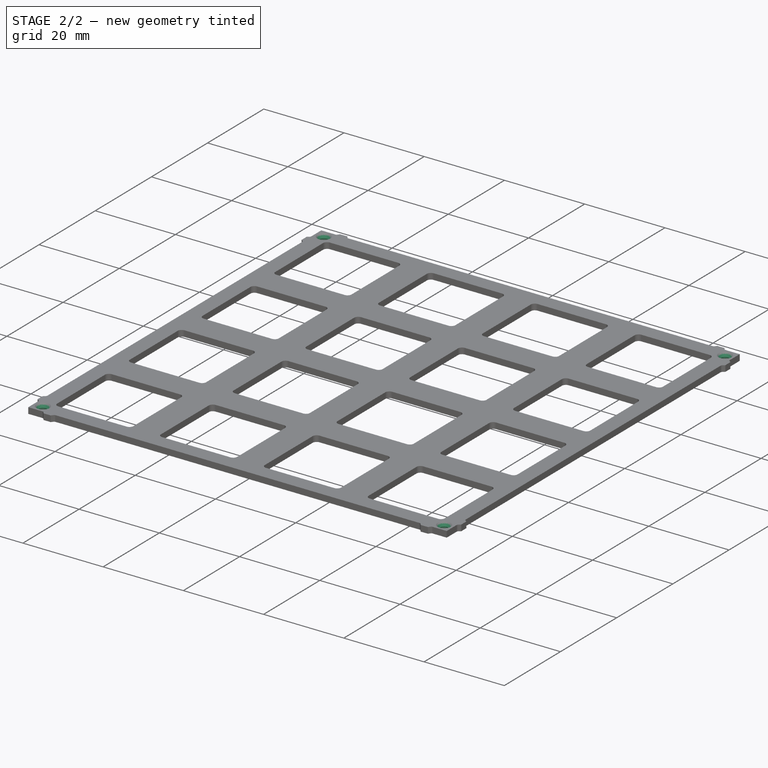
[diagram: stage 2 of 2 — iso view after this stage's code; geometry added in this stage tinted green]
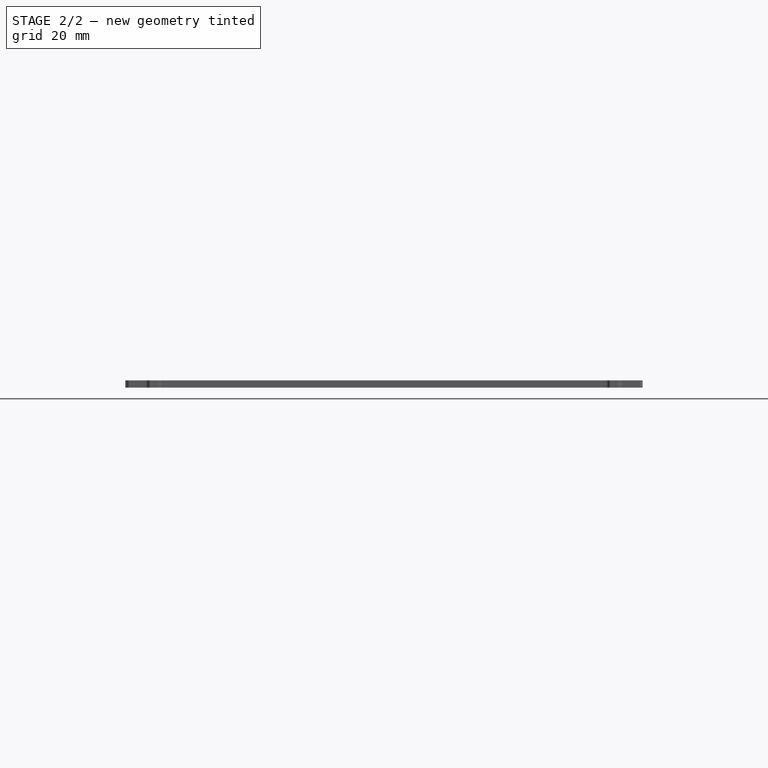
[diagram: stage 2 of 2 — front view after this stage's code; geometry added in this stage tinted green]
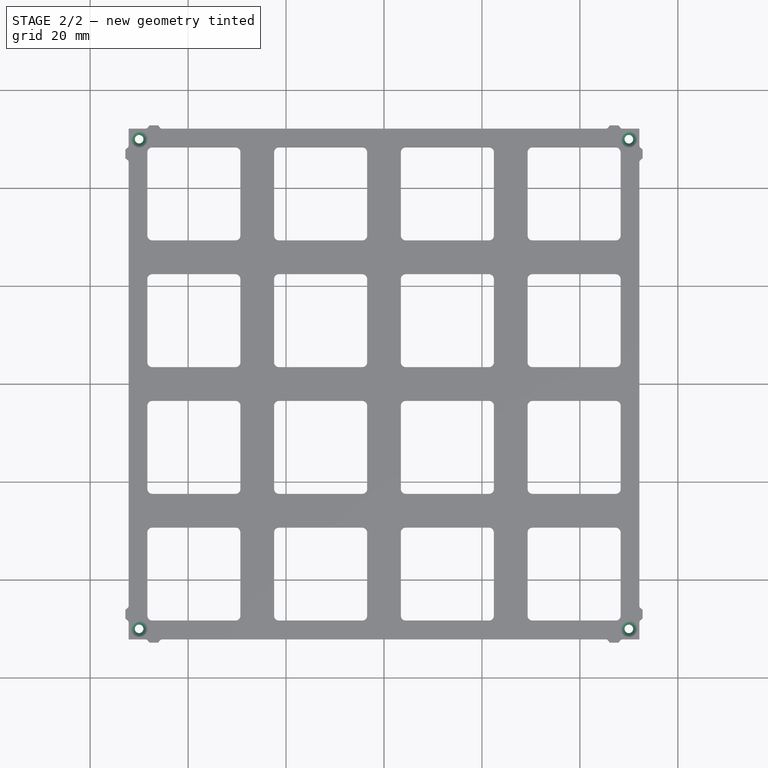
[diagram: stage 2 of 2 — top view after this stage's code; geometry added in this stage tinted green]
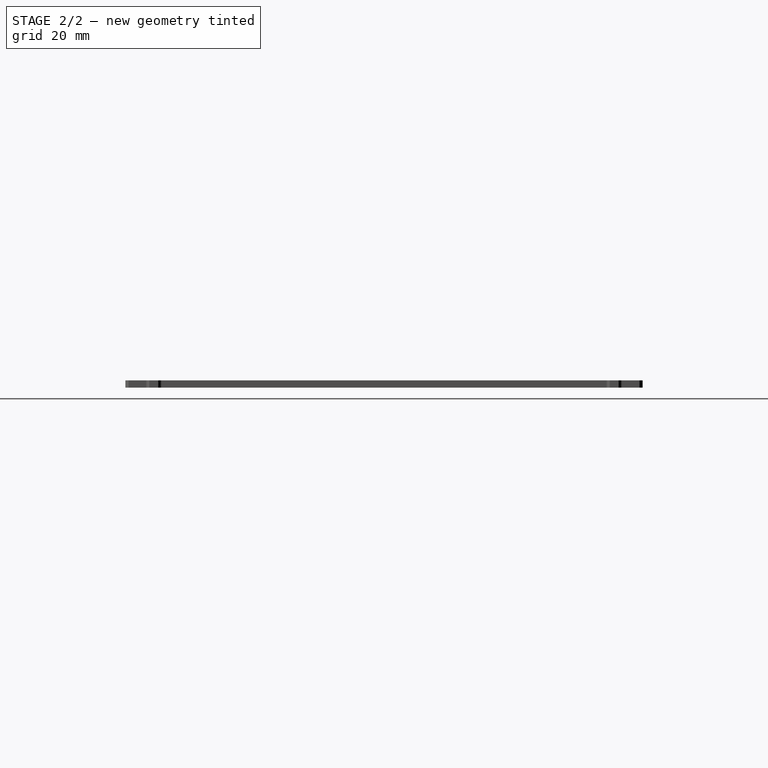
[diagram: stage 2 of 2 — right view after this stage's code; geometry added in this stage tinted green]
FEATURE [Sketcher::SketchObject] Sketch002
  ArcFitTolerance = 1e-06
  AttachmentSupport = -> [XY_Plane]
  FullyConstrained = true
  MakeInternals = false
  MapMode = 5
  sketch-geometry (14):
    g0: GeomPoint [constr] X=-50 Y=50 Z=0
    g1: GeomPoint [constr] X=50 Y=50 Z=0
    g2: GeomPoint [constr] X=50 Y=-50 Z=0
    g3: GeomPoint [constr] X=-50 Y=-50 Z=0
    g4: LineSegment [constr] StartX=-50 StartY=50 StartZ=0 EndX=50 EndY=50 EndZ=0
    g5: LineSegment [constr] StartX=50 StartY=50 StartZ=0 EndX=50 EndY=-50 EndZ=0
    g6: LineSegment [constr] StartX=50 StartY=-50 StartZ=0 EndX=-50 EndY=-50 EndZ=0
    g7: LineSegment [constr] StartX=-50 StartY=-50 StartZ=0 EndX=-50 EndY=50 EndZ=0
    g8: LineSegment [constr] StartX=-50 StartY=-50 StartZ=0 EndX=0 EndY=0 EndZ=0
    g9: LineSegment [constr] StartX=0 StartY=0 StartZ=0 EndX=50 EndY=50 EndZ=0
    g10: Circle CenterX=-50 CenterY=50 CenterZ=0 NormalX=0 NormalY=0 NormalZ=1 AngleXU=0 Radius=0.875
    g11: Circle CenterX=50 CenterY=50 CenterZ=0 NormalX=0 NormalY=0 NormalZ=1 AngleXU=0 Radius=0.875
    g12: Circle CenterX=50 CenterY=-50 CenterZ=0 NormalX=0 NormalY=0 NormalZ=1 AngleXU=0 Radius=0.875
    g13: Circle CenterX=-50 CenterY=-50 CenterZ=0 NormalX=0 NormalY=0 NormalZ=1 AngleXU=0 Radius=0.875
  constraints (28):
    c: Coincident(g4,g0)
    c: Coincident(g4,g1)
    c: Horizontal(g4)
    c: Coincident(g5,g1)
    c: Coincident(g5,g2)
    c: Vertical(g5)
    c: Coincident(g6,g2)
    c: Coincident(g6,g3)
    c: Horizontal(g6)
    c: Coincident(g7,g3)
    c: Coincident(g7,g0)
    c: Vertical(g7)
    c: Coincident(g8,g3)
    c: Coincident(g8,g-1)
    c: Coincident(g9,g8)
    c: Coincident(g9,g1)
    c: Equal(g9,g8)
    c: Parallel(g8,g9)
    c: Equal(g4,g7)
    c: DistanceX(g4,g4) = 100
    c: Coincident(g10,g0)
    c: Coincident(g11,g1)
    c: Coincident(g12,g2)
    c: Coincident(g13,g3)
    c: Equal(g13,g12)
    c: Equal(g12,g11)
    c: Equal(g11,g10)
    c: Diameter(g10) = 1.75
FEATURE [PartDesign::Hole] Hole
  BaseFeature = -> Pocket
  CustomThreadClearance = 0
  Depth = 301.675
  DepthType = 1
  Diameter = 1.75
  DrillForDepth = false
  DrillPoint = 1
  DrillPointAngle = 118
  HoleCutCountersinkAngle = 90
  HoleCutCustomValues = false
  HoleCutDepth = 0
  HoleCutDiameter = 3.3
  HoleCutType = 2
  ModelThread = false
  Profile = -> Sketch002
  Refine = true
  Suppressed = false
  Tapered = false
  TaperedAngle = 90
  ThreadClass = 0
  ThreadDepth = 301.675
  ThreadDepthType = 0
  ThreadDirection = 0
  ThreadFit = 2
  ThreadSize = 0
  ThreadType = 0
  Threaded = false
  UseCustomThreadClearance = false
FEATURE [PartDesign::Body] Body
  AllowCompound = false
  Group = -> [Binder,Sketch,Pad,Sketch001,Pocket,Sketch002,Hole]
  Origin = -> Origin
  Tip = -> Hole
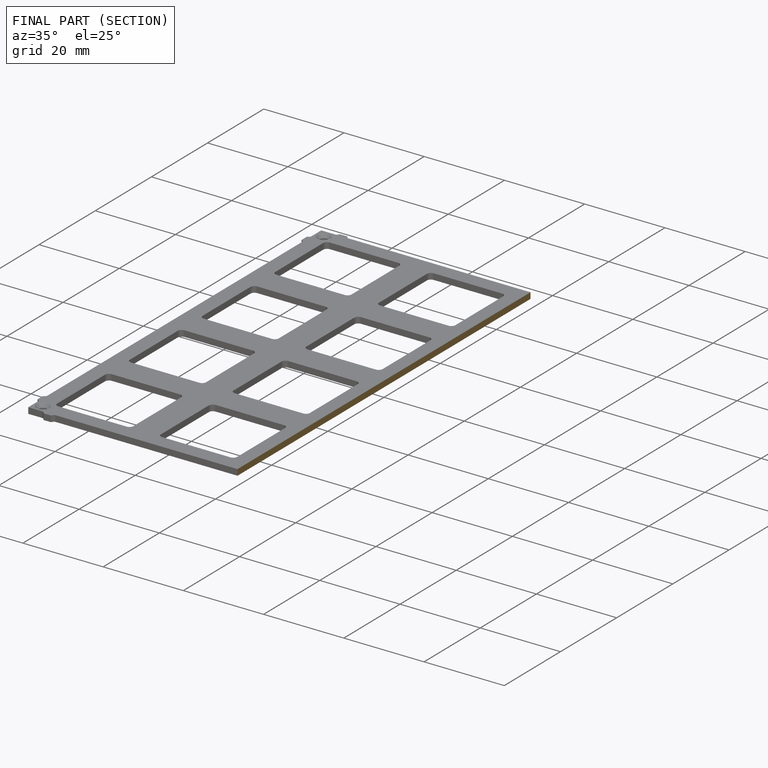
[diagram: finished part — half-section view (interior)]
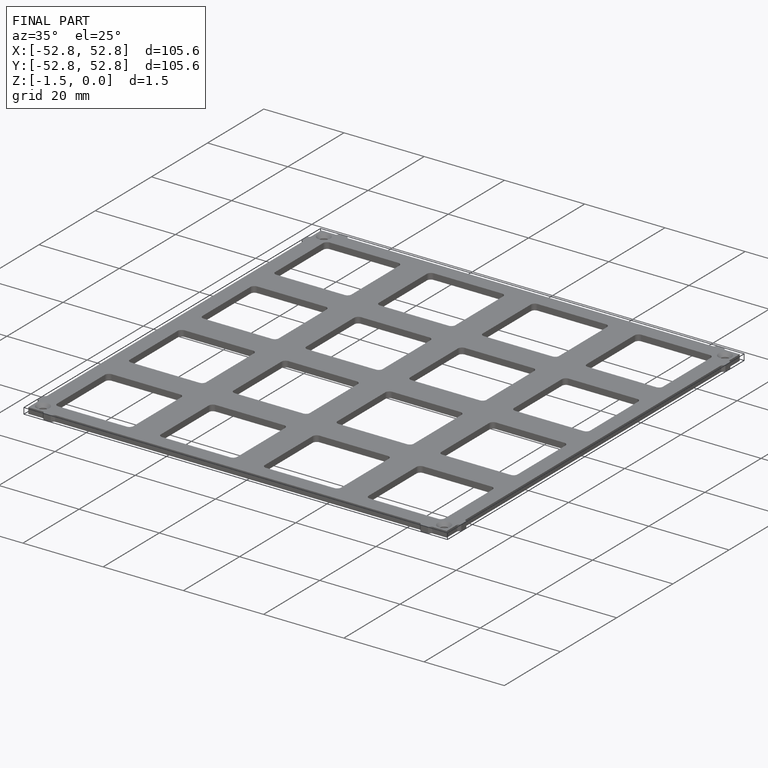
[diagram: finished part — iso view with bounding-box wireframe]
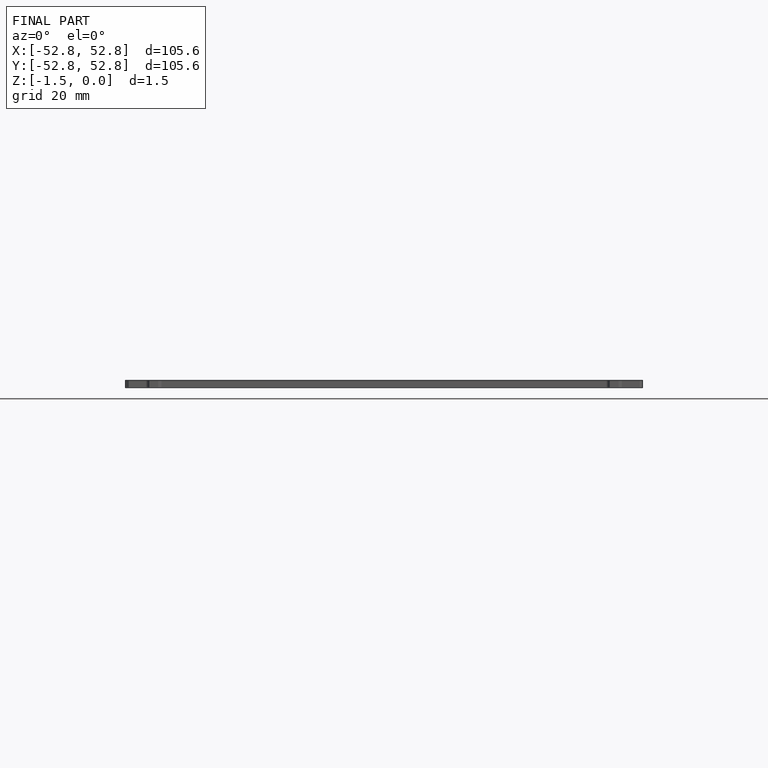
[diagram: finished part — front view with bounding-box wireframe]
